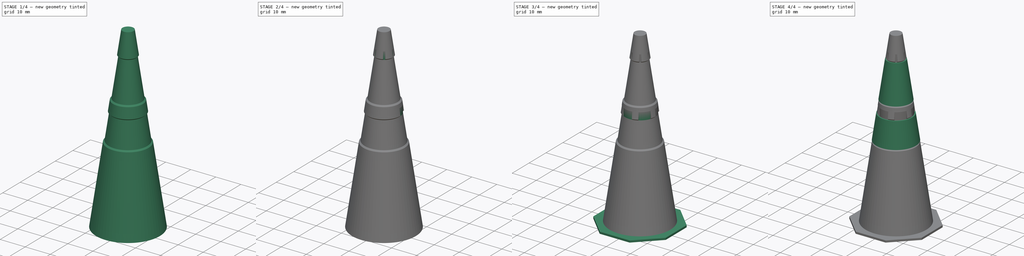
[diagram: build sequence overview — one tinted view per stage of 4, left to right]
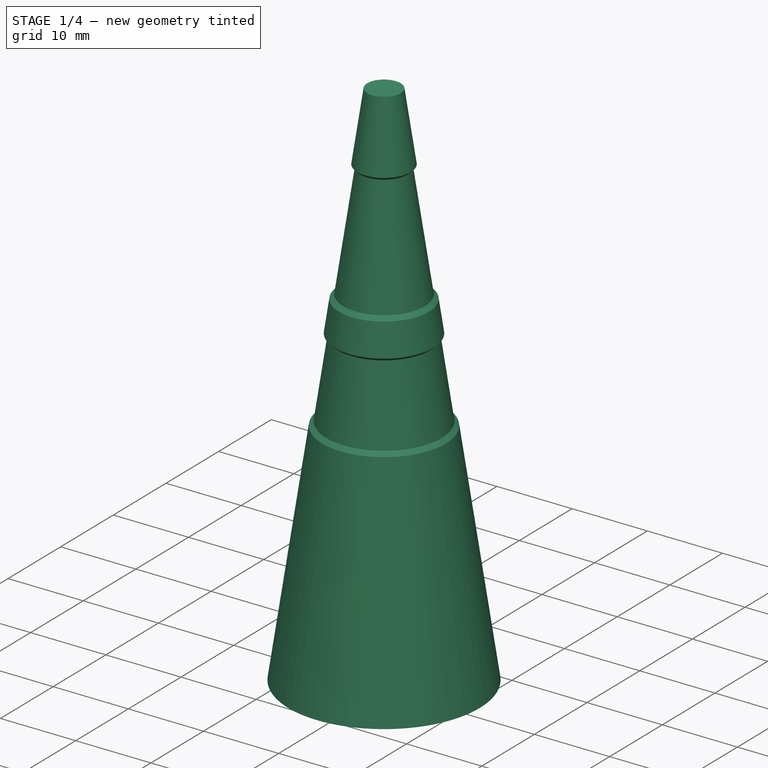
[diagram: stage 1 of 4 — iso view after this stage's code; geometry added in this stage tinted green]
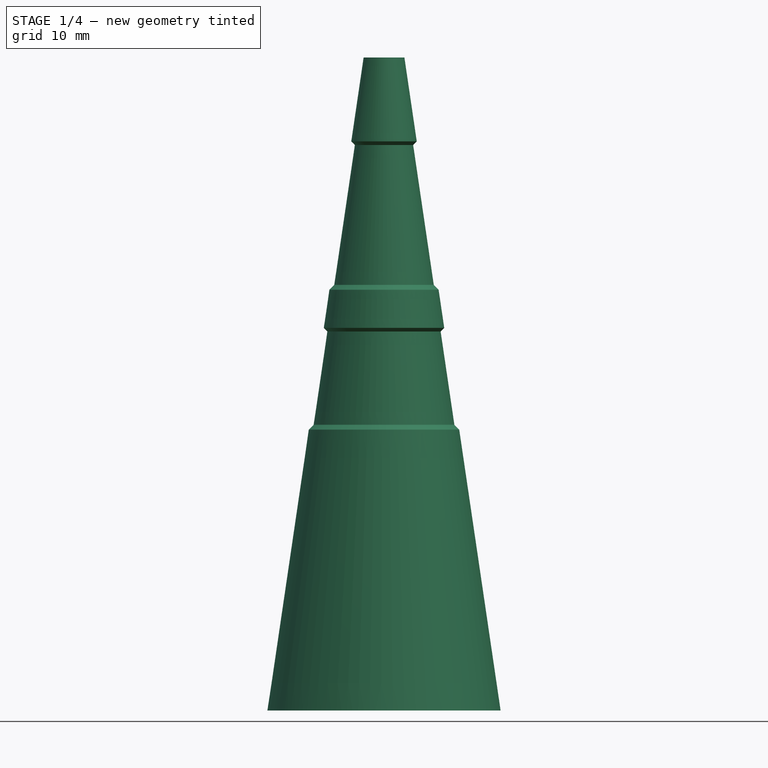
[diagram: stage 1 of 4 — front view after this stage's code; geometry added in this stage tinted green]
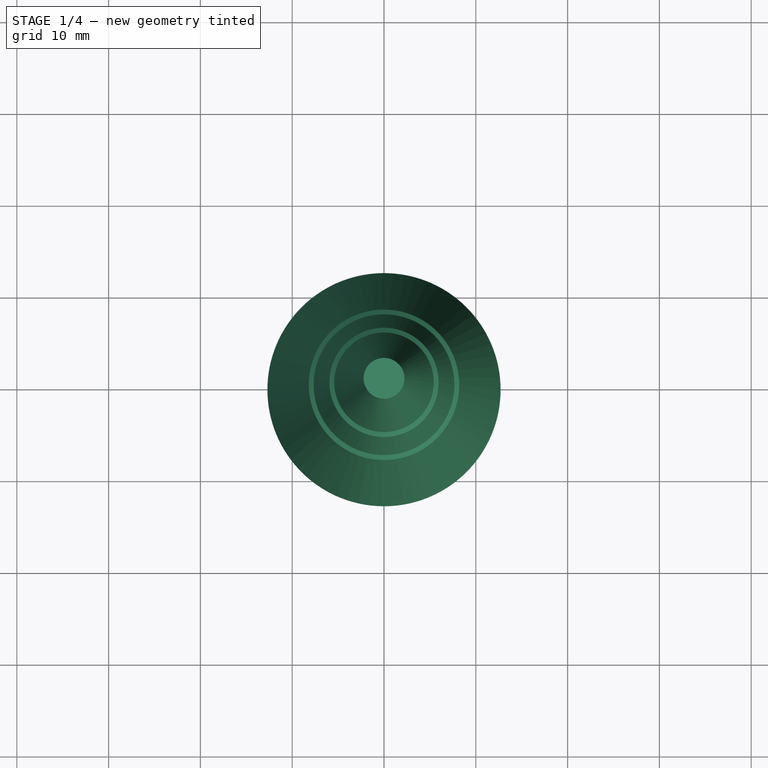
[diagram: stage 1 of 4 — top view after this stage's code; geometry added in this stage tinted green]
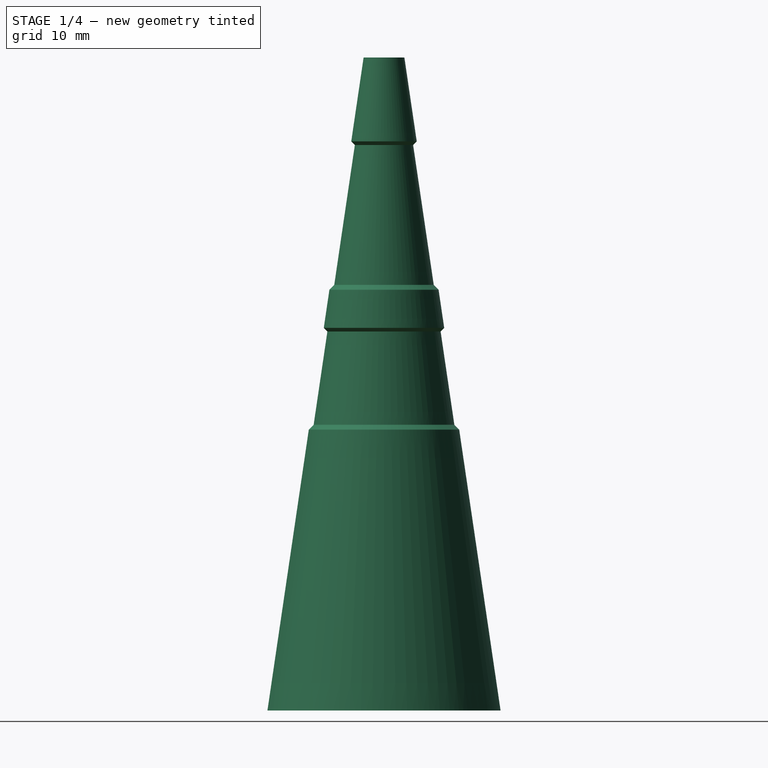
[diagram: stage 1 of 4 — right view after this stage's code; geometry added in this stage tinted green]
FCSTD DOCUMENT  (FreeCAD 1.0R39109 (Git))
Label: tiny-traffic-cone
License: All rights reserved
LicenseURL: https://en.wikipedia.org/wiki/All_rights_reserved
objects: Sketcher::SketchObject×10, PartDesign::Groove×5, PartDesign::Revolution×3, PartDesign::Body×3, Spreadsheet::Sheet×2, PartDesign::ShapeBinder×2, PartDesign::PolarPattern×2, PartDesign::Pad×1
note: 56 computed .brp shape members not serialized (recipe doc carries the construction recipe); baked Part::Feature solids carry a one-line shape summary decoded from their .brp

FEATURE [Sketcher::SketchObject] Sketch  label="Cone Sketch"
  ArcFitTolerance = 1e-06
  AttachmentSupport = -> [XZ_Plane]
  FullyConstrained = true
  MakeInternals = false
  MapMode = 5
  Placement = pos=(0,0,0) rot=(1,0,0;1.5708rad)
  expr: Constraints[4] = <<parameters>>.cone_bottom_d / 2
  expr: Constraints[5] = <<parameters>>.cone_top_d / 2
  expr: Constraints[8] = <<parameters>>.cone_height
  sketch-geometry (4):
    g0: LineSegment StartX=12.7 StartY=1.2e-15 StartZ=0 EndX=0 EndY=0 EndZ=0
    g1: LineSegment StartX=0 StartY=71.12 StartZ=0 EndX=2.2225 EndY=71.12 EndZ=0
    g2: LineSegment StartX=0 StartY=71.12 StartZ=0 EndX=0 EndY=0 EndZ=0
    g3: LineSegment StartX=2.2225 StartY=71.12 StartZ=0 EndX=12.7 EndY=1.2e-15 EndZ=0
  constraints (11):
    c: PointOnObject(g0,g-1)
    c: Coincident(g0,g-1)
    c: PointOnObject(g1,g-2)
    c: Horizontal(g1)
    c: DistanceX(g0,g0) = 12.7
    c: DistanceX(g1,g1) = 2.2225
    c: Coincident(g2,g1)
    c: Coincident(g2,g0)
    c: DistanceY(g2,g2) = 71.12
    c: Coincident(g3,g1)
    c: Coincident(g0,g3)
FEATURE [Spreadsheet::Sheet] Spreadsheet  label="parameters"
  cells = A1='fit values; B1='in mm; A2='cone/band fit; B2(fit)=0.1; A4='printing; B4='in mm / deg; D4='ref; A5='wall thickness; B5(wall)=0.45; A7='max print angle; B7(max_print_angle)=45; A8='top band tab coutout angle; B8(top_band_cutout_angle)=12; A9='bottom band tab cutout angle; B9(bottom_band_cutout_angle)=40; A10='tab cutout count; B10(cutout_tab_count)=6; A11='cone base height; B11(cone_base_height)=0.8; A12='cone base width; B12(cone_base_width)=30; A13='base corner fillet; B13(base_corner_fillet)=7; A15='traffic cone; C15='ref; D15='https://www.oregon.gov/odot/Engineering/Docs_TrafficEng/OTTCH-v2011.pdf; E15='https://www.cabletiesandmore.com/uploads/TC-28-6in-4in-Collar.pdf; F15='https://www.cabletiesandmore.com/jbc-safety-white-traffic-cones; B16='in inches; C16='in mm (1/10 scale); A17='cone height; B17=28; C17(cone_height)==B17 * 25.4 / 10; A18='cone bottom diam; B18=10; C18(cone_bottom_d)==B18 * 25.4 / 10; A19='cone top diam; B19=1.75; C19(cone_top_d)==B19 * 25.4 / 10; A20='top band dist from top; B20=3.75; C20(top_band_v_dist)==B20 * 25.4 / 10; A21='top band height; B21=6; C21(top_band_height)==B21 * 25.4 / 10; A22='bottom band dist from top band; B22=2; C22(bottom_band_v_dist)==B22 * 25.4 / 10; A23='bottom band height; B23=4; C23(bottom_band_height)==B23 * 25.4 / 10
FEATURE [Sketcher::SketchObject] Sketch004
  ArcFitTolerance = 1e-06
  AttachmentSupport = -> [XZ_Plane]
  ExternalGeometry = -> [Sketch]
  FullyConstrained = true
  MakeInternals = false
  MapMode = 5
  Placement = pos=(0,0,0) rot=(1,0,0;1.5708rad)
  expr: Constraints[11] = <<parameters>>.wall
  expr: Constraints[4] = 90 + <<parameters>>.max_print_angle
  expr: Constraints[5] = <<parameters>>.max_print_angle
  expr: Constraints[7] = <<parameters>>.top_band_height
  sketch-geometry (5):
    g0: LineSegment StartX=5.94866 StartY=45.8273 StartZ=0 EndX=5.42092 EndY=46.355 EndZ=0
    g1: LineSegment StartX=5.42092 StartY=46.355 StartZ=0 EndX=3.17574 EndY=61.595 EndZ=0
    g2: LineSegment StartX=3.17574 StartY=61.595 StartZ=0 EndX=3.56795 EndY=61.9872 EndZ=0
    g3: LineSegment StartX=3.56795 StartY=61.9872 StartZ=0 EndX=5.94866 EndY=45.8273 EndZ=0
    g4: LineSegment [constr] StartX=5.42092 StartY=46.355 StartZ=0 EndX=5.87092 EndY=46.355 EndZ=0
  constraints (15):
    c: Coincident(g1,g0)
    c: Coincident(g2,g1)
    c: Coincident(g3,g2)
    c: Coincident(g3,g0)
    c: Angle(g0) = 2.35619
    c: Angle(g2) = 0.785398
    c: Parallel(g3,g1)
    c: DistanceY(g1,g1) = 15.24
    c: Coincident(g4,g0)
    c: PointOnObject(g4,g3)
    c: Horizontal(g4)
    c: DistanceX(g4,g4) = 0.45
    c: DistanceY(g1,g-3) = 9.525
    c: Parallel(g1,g-4)
    c: PointOnObject(g2,g-4)
FEATURE [PartDesign::ShapeBinder] ShapeBinder
  Placement = pos=(0,0,0) rot=(1,0,0;1.5708rad)
  Support = -> [Sketch004]
  TraceSupport = false
FEATURE [PartDesign::Revolution] Revolution003  label="Basic Cone"
  Angle = 360
  Angle2 = 60
  Axis = (0,2e-16,1)
  Base = (0,0,0)
  Placement = pos=(0,0,0) rot=(1,0,0;1.5708rad)
  Profile = -> Sketch
  ReferenceAxis = -> Sketch [V_Axis]
  Refine = true
  Reversed = true
  Suppressed = false
  Type = 0
FEATURE [PartDesign::Body] Body002  label="BottomBand"
  AllowCompound = false
  Group = -> [ShapeBinder001,Sketch002,Revolution002]
  Origin = -> Origin002
  Tip = -> Revolution002
FEATURE [PartDesign::Groove] Groove  label="Top Band Groove"
  Angle = 360
  Angle2 = 60
  Axis = (0,2e-16,1)
  Base = (0,0,0)
  BaseFeature = -> Revolution003
  Placement = pos=(0,0,0) rot=(1,0,0;1.5708rad)
  Profile = -> Sketch004
  ReferenceAxis = -> Sketch004 [V_Axis]
  Refine = true
  Suppressed = false
  Type = 0
FEATURE [PartDesign::Groove] Groove001  label="Bottom Band Groove"
  Angle = 360
  Angle2 = 60
  Axis = (0,2e-16,1)
  Base = (0,0,0)
  BaseFeature = -> Groove
  Placement = pos=(0,0,0) rot=(1,0,0;1.5708rad)
  Profile = -> Sketch007
  ReferenceAxis = -> Sketch007 [V_Axis]
  Refine = true
  Suppressed = false
  Type = 0
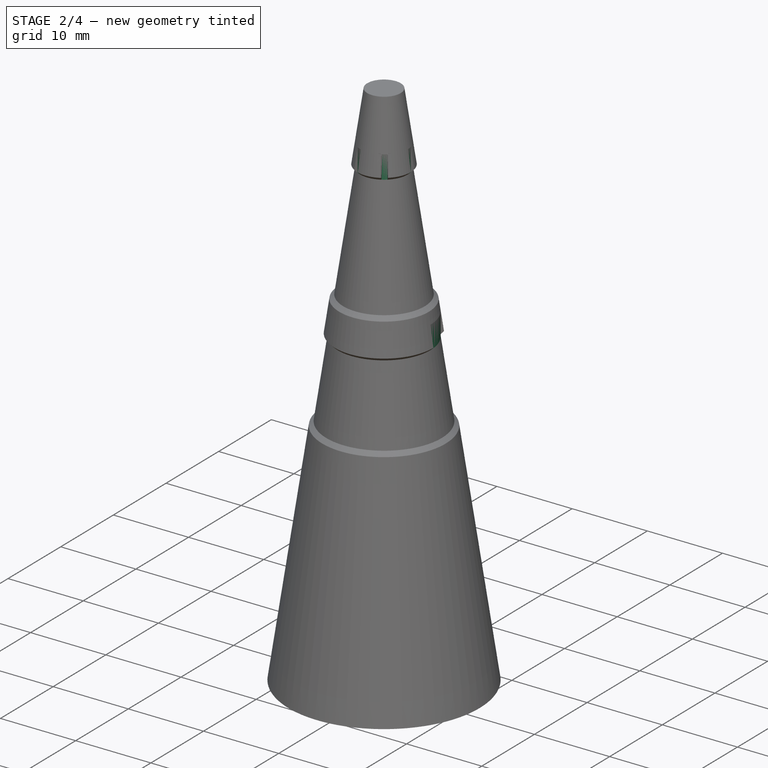
[diagram: stage 2 of 4 — iso view after this stage's code; geometry added in this stage tinted green]
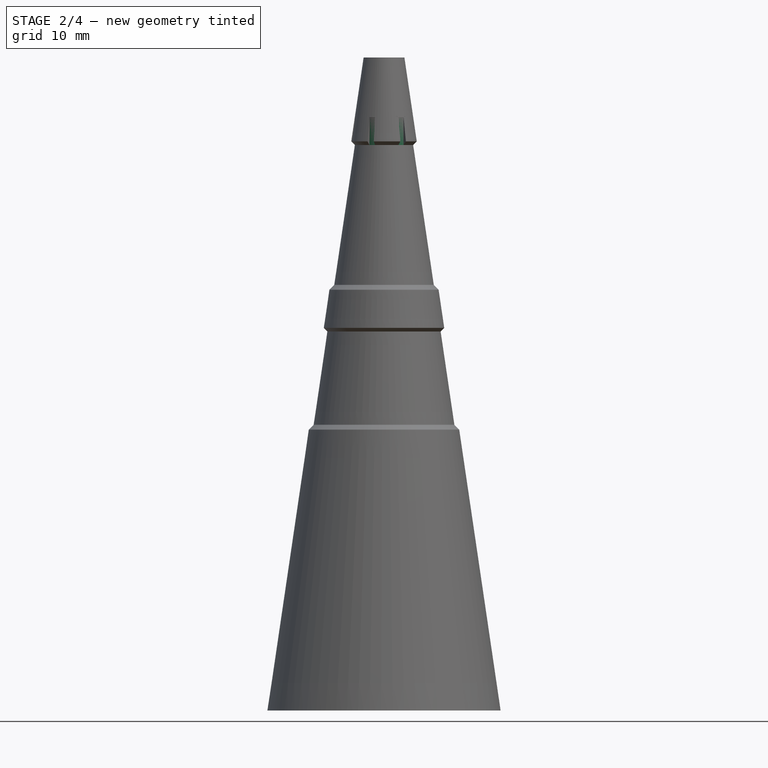
[diagram: stage 2 of 4 — front view after this stage's code; geometry added in this stage tinted green]
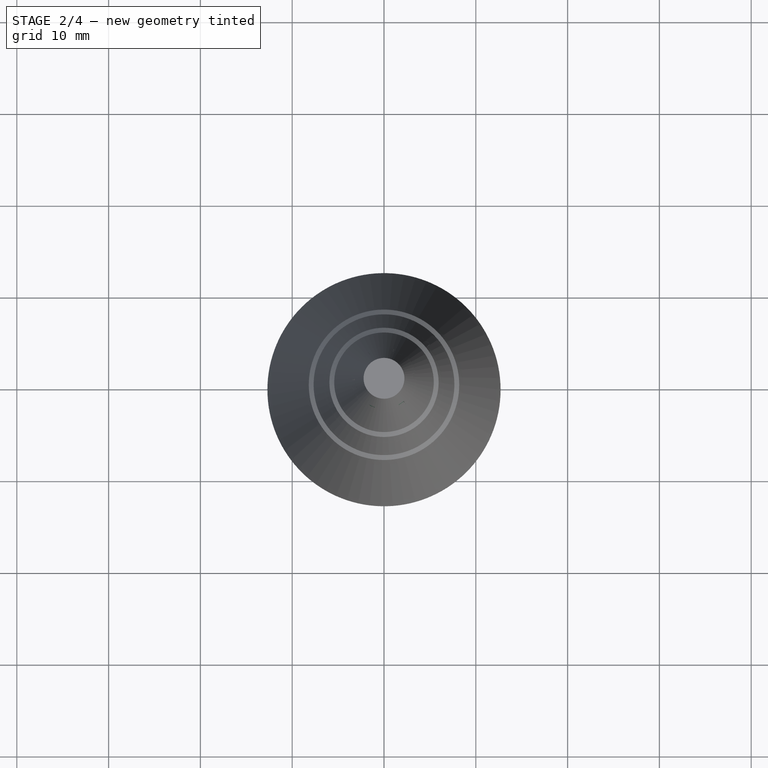
[diagram: stage 2 of 4 — top view after this stage's code; geometry added in this stage tinted green]
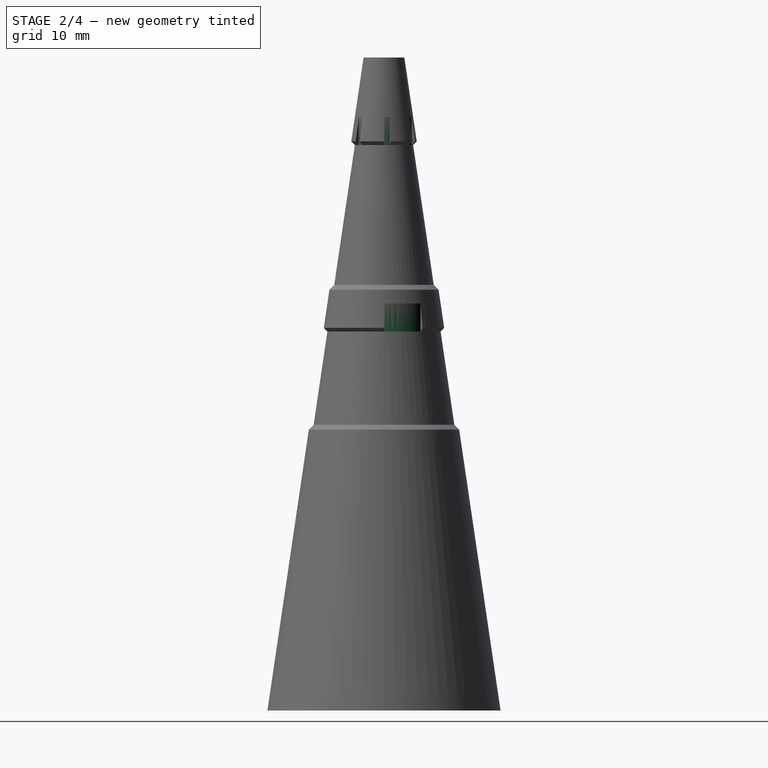
[diagram: stage 2 of 4 — right view after this stage's code; geometry added in this stage tinted green]
FEATURE [Sketcher::SketchObject] Sketch008
  ArcFitTolerance = 1e-06
  AttachmentSupport = -> [XZ_Plane]
  ExternalGeometry = -> [Sketch,Sketch004]
  FullyConstrained = true
  MakeInternals = false
  MapMode = 5
  Placement = pos=(0,0,0) rot=(1,0,0;1.5708rad)
  sketch-geometry (3):
    g0: LineSegment StartX=3.17574 StartY=61.595 StartZ=0 EndX=3.56795 EndY=61.9872 EndZ=0
    g1: LineSegment StartX=3.17574 StartY=61.595 StartZ=0 EndX=3.17574 EndY=64.6495 EndZ=0
    g2: LineSegment StartX=3.17574 StartY=64.6495 StartZ=0 EndX=3.56795 EndY=61.9872 EndZ=0
  constraints (7):
    c: Coincident(g0,g-4)
    c: Coincident(g0,g-4)
    c: Coincident(g1,g0)
    c: PointOnObject(g1,g-3)
    c: Vertical(g1)
    c: Coincident(g2,g1)
    c: Coincident(g2,g0)
FEATURE [PartDesign::Groove] Groove002
  Angle = 12
  Angle2 = 60
  Axis = (0,2e-16,1)
  Base = (0,0,0)
  BaseFeature = -> Groove001
  Placement = pos=(0,0,0) rot=(1,0,0;1.5708rad)
  Profile = -> Sketch008
  ReferenceAxis = -> Sketch008 [V_Axis]
  Refine = true
  Suppressed = false
  Type = 0
  expr: Angle = <<parameters>>.top_band_cutout_angle
FEATURE [PartDesign::PolarPattern] PolarPattern  label="Top Band Tab Cut"
  Angle = 360
  Axis = -> Sketch008 [V_Axis]
  BaseFeature = -> Groove002
  Mode = 0
  Occurrences = 6
  Offset = 124
  Originals = -> [Groove002]
  Placement = pos=(0,0,0) rot=(1,0,0;1.5708rad)
  Refine = true
  Suppressed = false
  TransformMode = 0
  expr: Occurrences = <<parameters>>.cutout_tab_count
FEATURE [Sketcher::SketchObject] Sketch009
  ArcFitTolerance = 1e-06
  AttachmentSupport = -> [XZ_Plane]
  ExternalGeometry = -> [Sketch,Sketch007]
  FullyConstrained = true
  MakeInternals = false
  MapMode = 5
  Placement = pos=(0,0,0) rot=(1,0,0;1.5708rad)
  sketch-geometry (3):
    g0: LineSegment StartX=6.16931 StartY=41.275 StartZ=0 EndX=6.56153 EndY=41.6672 EndZ=0
    g1: LineSegment StartX=6.16931 StartY=41.275 StartZ=0 EndX=6.16931 EndY=44.3295 EndZ=0
    g2: LineSegment StartX=6.16931 StartY=44.3295 StartZ=0 EndX=6.56153 EndY=41.6672 EndZ=0
  constraints (7):
    c: Coincident(g0,g-4)
    c: Coincident(g0,g-4)
    c: Coincident(g1,g0)
    c: PointOnObject(g1,g-3)
    c: Vertical(g1)
    c: Coincident(g2,g1)
    c: Coincident(g2,g0)
FEATURE [PartDesign::Groove] Groove003
  Angle = 40
  Angle2 = 60
  Axis = (0,2e-16,1)
  Base = (0,0,0)
  BaseFeature = -> PolarPattern
  Placement = pos=(0,0,0) rot=(1,0,0;1.5708rad)
  Profile = -> Sketch009
  ReferenceAxis = -> Sketch009 [V_Axis]
  Refine = true
  Suppressed = false
  Type = 0
  expr: Angle = <<parameters>>.bottom_band_cutout_angle
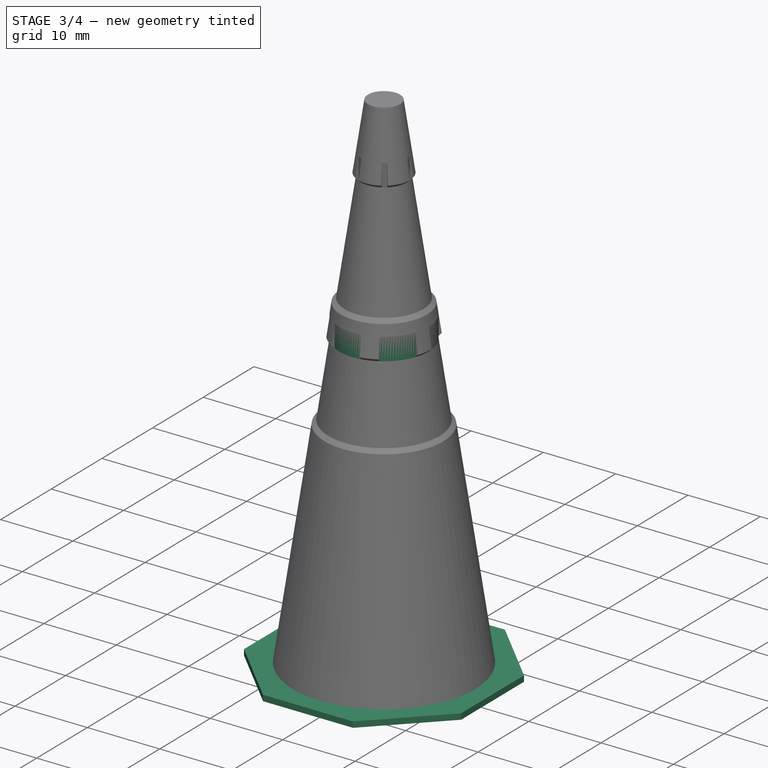
[diagram: stage 3 of 4 — iso view after this stage's code; geometry added in this stage tinted green]
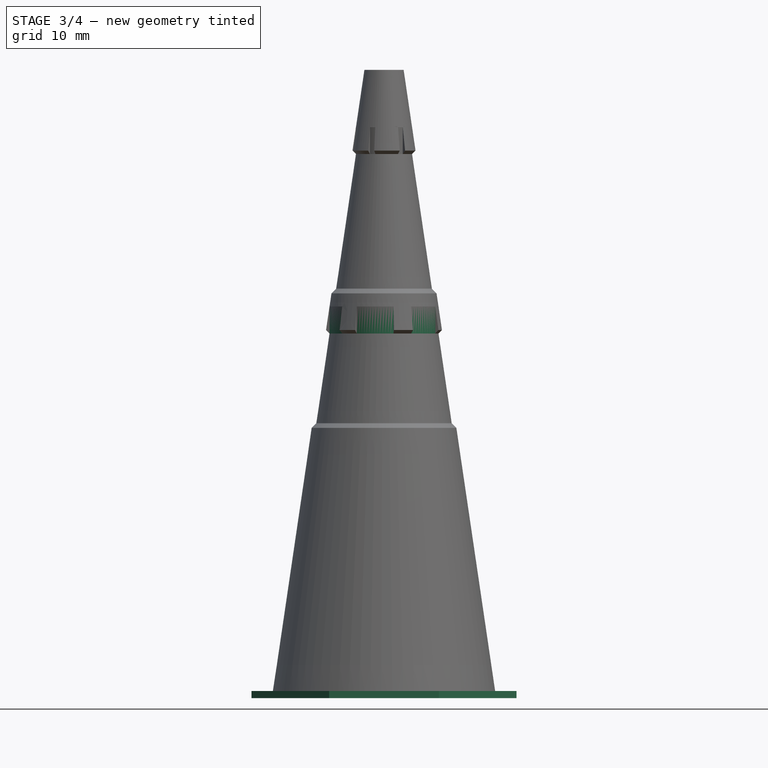
[diagram: stage 3 of 4 — front view after this stage's code; geometry added in this stage tinted green]
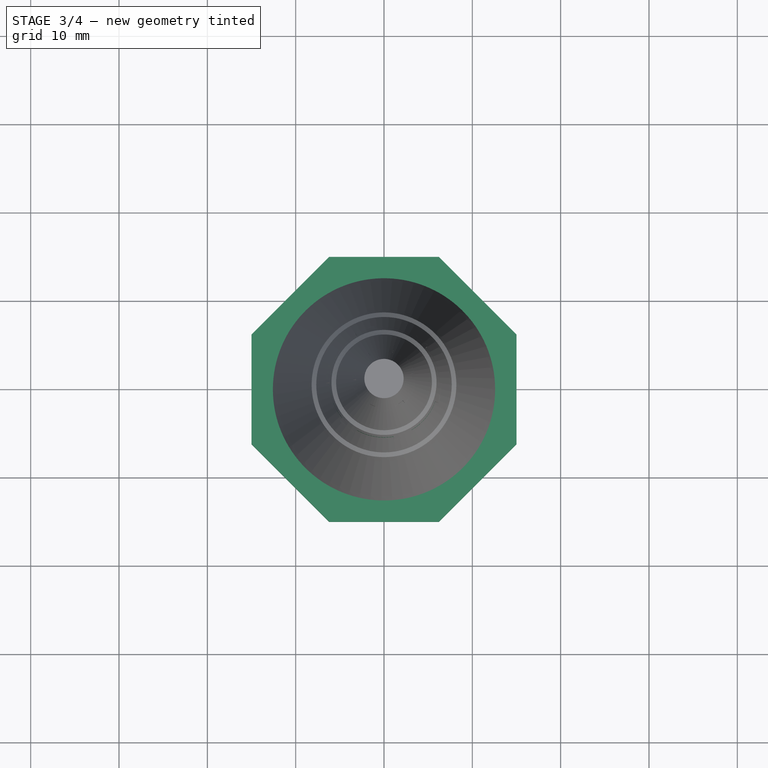
[diagram: stage 3 of 4 — top view after this stage's code; geometry added in this stage tinted green]
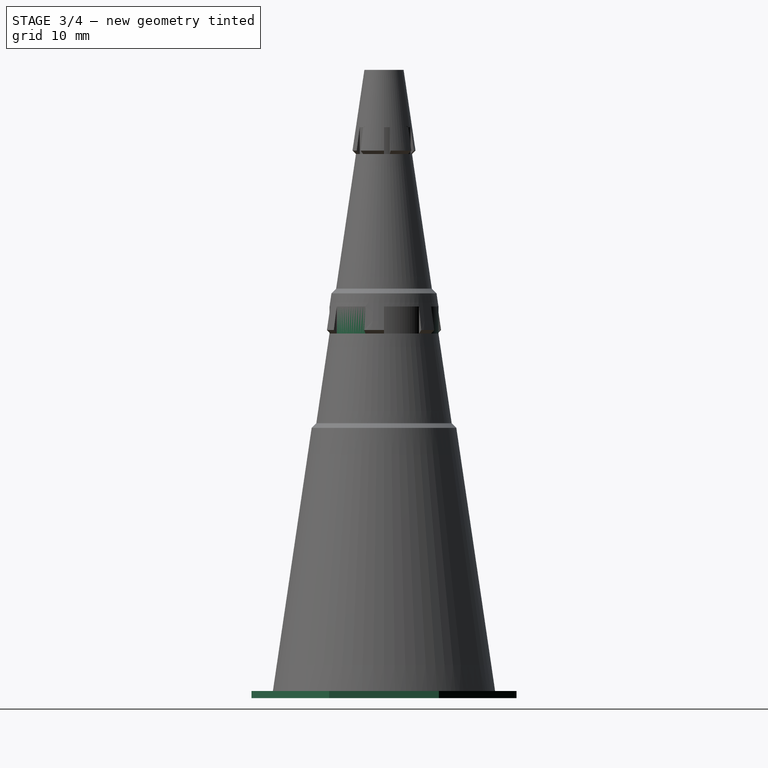
[diagram: stage 3 of 4 — right view after this stage's code; geometry added in this stage tinted green]
FEATURE [PartDesign::PolarPattern] PolarPattern001  label="Bottom Band Tab Cut"
  Angle = 360
  Axis = -> Sketch009 [V_Axis]
  BaseFeature = -> Groove003
  Mode = 0
  Occurrences = 6
  Offset = 120
  Originals = -> [Groove003]
  Placement = pos=(0,0,0) rot=(1,0,0;1.5708rad)
  Refine = true
  Suppressed = false
  TransformMode = 0
  expr: Occurrences = <<parameters>>.cutout_tab_count
FEATURE [PartDesign::Body] Body001  label="TopBand"
  AllowCompound = false
  Group = -> [ShapeBinder,Sketch010,Revolution]
  Origin = -> Origin001
  Tip = -> Revolution
FEATURE [Sketcher::SketchObject] Sketch011  label="ConeBaseSketch"
  ArcFitTolerance = 1e-06
  AttachmentSupport = -> [XY_Plane]
  FullyConstrained = true
  MakeInternals = false
  MapMode = 5
  expr: Constraints[26] = <<parameters>>.cone_base_width
  sketch-geometry (12):
    g0: LineSegment StartX=-6.2132 StartY=15 StartZ=0 EndX=6.2132 EndY=15 EndZ=0
    g1: LineSegment StartX=6.2132 StartY=15 StartZ=0 EndX=15 EndY=6.2132 EndZ=0
    g2: LineSegment StartX=15 StartY=6.2132 StartZ=0 EndX=15 EndY=-6.2132 EndZ=0
    g3: LineSegment StartX=15 StartY=-6.2132 StartZ=0 EndX=6.2132 EndY=-15 EndZ=0
    g4: LineSegment StartX=6.2132 StartY=-15 StartZ=0 EndX=-6.2132 EndY=-15 EndZ=0
    g5: LineSegment StartX=-6.2132 StartY=-15 StartZ=0 EndX=-15 EndY=-6.2132 EndZ=0
    g6: LineSegment StartX=-15 StartY=-6.2132 StartZ=0 EndX=-15 EndY=6.2132 EndZ=0
    g7: LineSegment StartX=-15 StartY=6.2132 StartZ=0 EndX=-6.2132 EndY=15 EndZ=0
    g8: LineSegment [constr] StartX=-6.2132 StartY=15 StartZ=0 EndX=-6.2132 EndY=-15 EndZ=0
    g9: LineSegment [constr] StartX=6.2132 StartY=15 StartZ=0 EndX=6.2132 EndY=-15 EndZ=0
    g10: LineSegment [constr] StartX=-15 StartY=6.2132 StartZ=0 EndX=15 EndY=6.2132 EndZ=0
    g11: LineSegment [constr] StartX=-15 StartY=-6.2132 StartZ=0 EndX=15 EndY=-6.2132 EndZ=0
  constraints (30):
    c: Coincident(g1,g0)
    c: Coincident(g2,g1)
    c: Coincident(g3,g2)
    c: Coincident(g4,g3)
    c: Horizontal(g4)
    c: Coincident(g5,g4)
    c: Coincident(g6,g5)
    c: Vertical(g6)
    c: Coincident(g7,g6)
    c: Coincident(g7,g0)
    c: Coincident(g8,g0)
    c: Coincident(g8,g4)
    c: Vertical(g8)
    c: Coincident(g9,g0)
    c: Coincident(g9,g3)
    c: Coincident(g10,g6)
    c: Coincident(g10,g1)
    c: Coincident(g11,g5)
    c: Coincident(g11,g2)
    c: Horizontal(g10)
    c: Horizontal(g11)
    c: Vertical(g9)
    c: Symmetric(g0,g0,g-2)
    c: Symmetric(g1,g2,g-1)
    c: Parallel(g1,g5)
    c: Parallel(g7,g3)
    c: DistanceY(g8,g8) = 30
    c: Angle(g7) = 0.785398
    c: Equal(g7,g6)
    c: Equal(g0,g7)
FEATURE [PartDesign::Pad] Pad001  label="ConeBase"
  BaseFeature = -> PolarPattern001
  Direction = (0,0,1)
  Length = 0.8
  Length2 = 10
  Placement = pos=(0,0,0) rot=(1,0,0;1.5708rad)
  Profile = -> Sketch011
  ReferenceAxis = -> Sketch011 [N_Axis]
  Refine = true
  Suppressed = false
  Type = 0
  expr: Length = <<parameters>>.cone_base_height
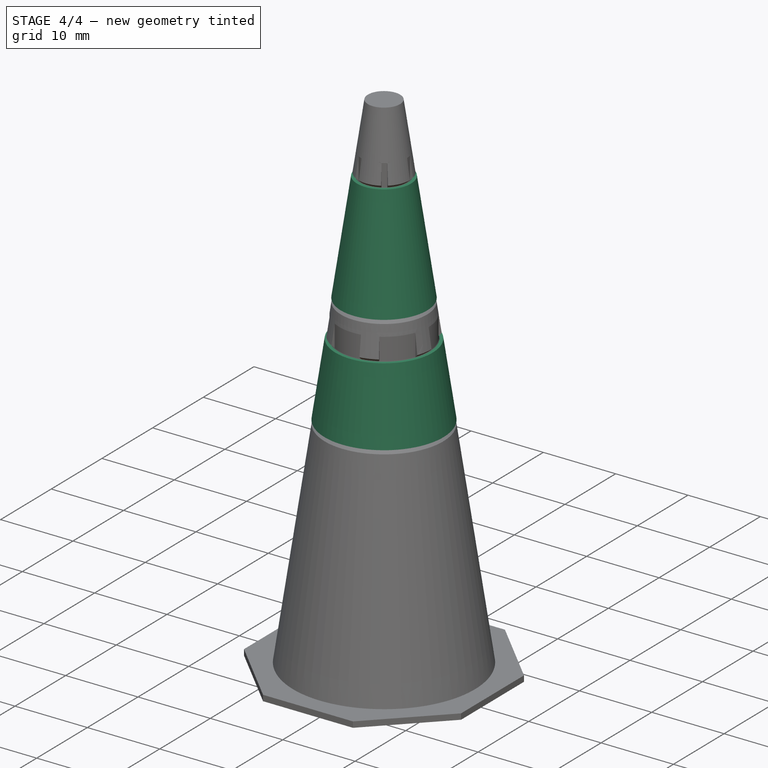
[diagram: stage 4 of 4 — iso view after this stage's code; geometry added in this stage tinted green]
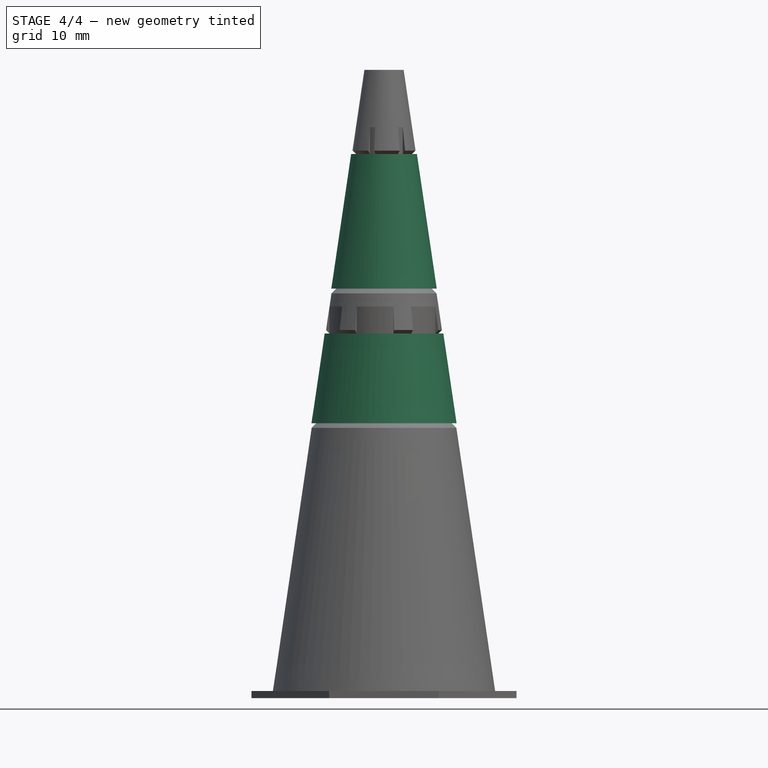
[diagram: stage 4 of 4 — front view after this stage's code; geometry added in this stage tinted green]
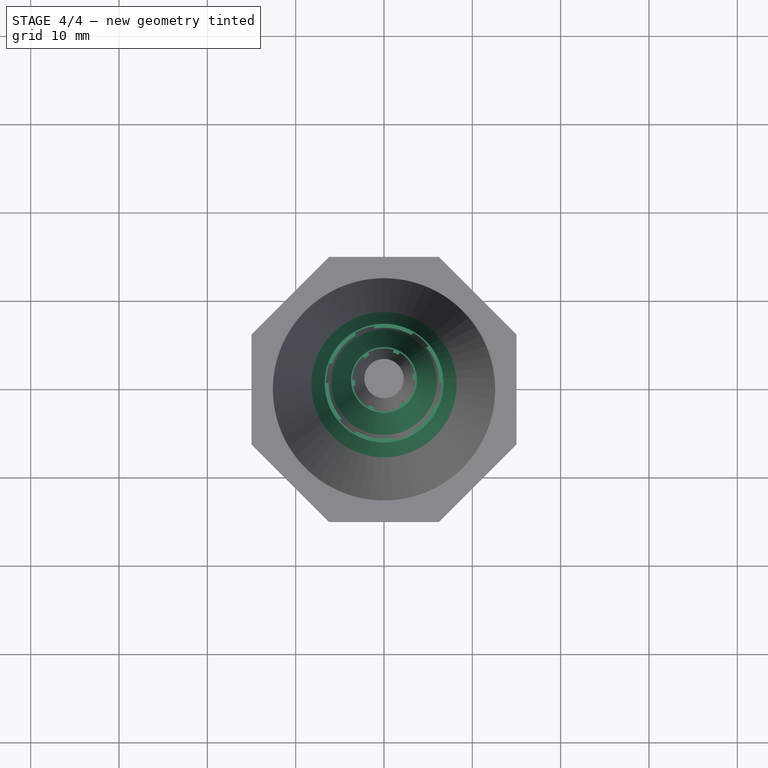
[diagram: stage 4 of 4 — top view after this stage's code; geometry added in this stage tinted green]
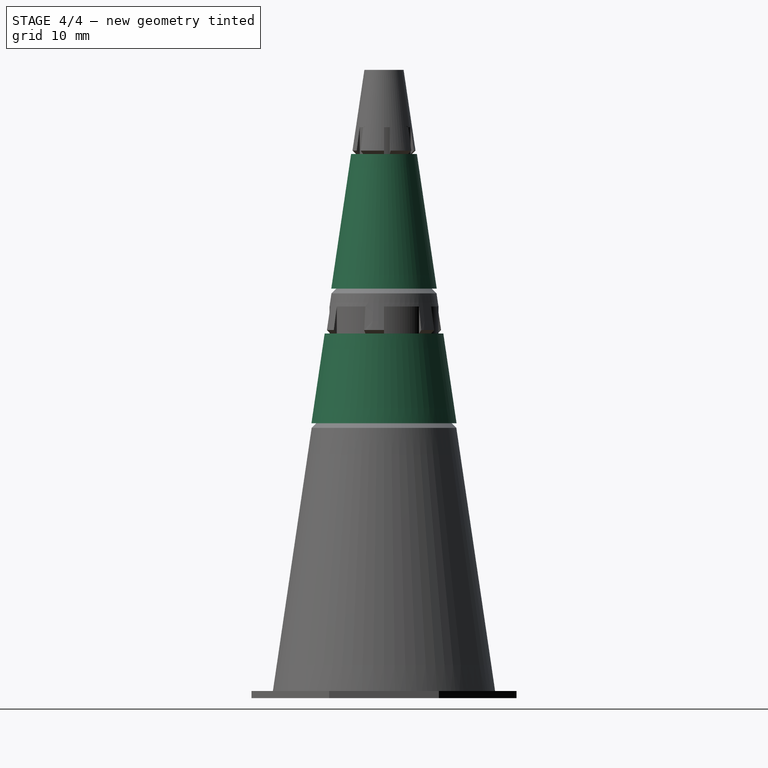
[diagram: stage 4 of 4 — right view after this stage's code; geometry added in this stage tinted green]
FEATURE [Sketcher::SketchObject] Sketch007
  ArcFitTolerance = 1e-06
  AttachmentSupport = -> [XZ_Plane]
  ExternalGeometry = -> [Sketch004,Sketch]
  FullyConstrained = true
  MakeInternals = false
  MapMode = 5
  Placement = pos=(0,0,0) rot=(1,0,0;1.5708rad)
  expr: Constraints[12] = <<parameters>>.bottom_band_v_dist
  expr: Constraints[5] = <<parameters>>.bottom_band_height
  sketch-geometry (5):
    g0: LineSegment StartX=6.56153 StartY=41.6672 StartZ=0 EndX=6.16931 EndY=41.275 EndZ=0
    g1: LineSegment StartX=6.16931 StartY=41.275 StartZ=0 EndX=7.66609 EndY=31.115 EndZ=0
    g2: LineSegment StartX=7.66609 StartY=31.115 StartZ=0 EndX=8.19384 EndY=30.5873 EndZ=0
    g3: LineSegment StartX=8.19384 StartY=30.5873 StartZ=0 EndX=6.56153 EndY=41.6672 EndZ=0
    g4: LineSegment [constr] StartX=5.42092 StartY=46.355 StartZ=0 EndX=6.16931 EndY=41.275 EndZ=0
  constraints (14):
    c: Coincident(g1,g0)
    c: Coincident(g2,g1)
    c: Coincident(g3,g2)
    c: Coincident(g3,g0)
    c: Parallel(g1,g3)
    c: DistanceY(g1,g1) = 10.16
    c: Coincident(g4,g-4)
    c: Coincident(g4,g0)
    c: PointOnObject(g0,g-6)
    c: Parallel(g-6,g4)
    c: Parallel(g0,g-5)
    c: Parallel(g-4,g2)
    c: DistanceY(g4,g4) = 5.08
    c: PointOnObject(g2,g-6)
FEATURE [PartDesign::ShapeBinder] ShapeBinder001
  Placement = pos=(0,0,0) rot=(1,0,0;1.5708rad)
  Support = -> [Sketch007]
  TraceSupport = false
FEATURE [Sketcher::SketchObject] Sketch002
  ArcFitTolerance = 1e-06
  AttachmentSupport = -> [XZ_Plane002]
  ExternalGeometry = -> [ShapeBinder001]
  FullyConstrained = true
  MakeInternals = false
  MapMode = 5
  Placement = pos=(0,0,0) rot=(1,0,0;1.5708rad)
  expr: Constraints[14] = <<parameters>>.fit
  expr: Constraints[15] = <<parameters>>.wall
  sketch-geometry (6):
    g0: LineSegment [constr] StartX=6.16931 StartY=41.275 StartZ=0 EndX=6.26931 EndY=41.275 EndZ=0
    g1: LineSegment [constr] StartX=7.66609 StartY=31.115 StartZ=0 EndX=7.76609 EndY=31.115 EndZ=0
    g2: LineSegment StartX=6.26931 StartY=41.275 StartZ=0 EndX=6.71931 EndY=41.275 EndZ=0
    g3: LineSegment StartX=6.26931 StartY=41.275 StartZ=0 EndX=7.76609 EndY=31.115 EndZ=0
    g4: LineSegment StartX=7.76609 StartY=31.115 StartZ=0 EndX=8.21609 EndY=31.115 EndZ=0
    g5: LineSegment StartX=8.21609 StartY=31.115 StartZ=0 EndX=6.71931 EndY=41.275 EndZ=0
  constraints (16):
    c: Coincident(g0,g-3)
    c: Horizontal(g0)
    c: Coincident(g1,g-3)
    c: Horizontal(g1)
    c: Coincident(g2,g0)
    c: Horizontal(g2)
    c: Coincident(g3,g0)
    c: Coincident(g3,g1)
    c: Coincident(g4,g1)
    c: Horizontal(g4)
    c: Coincident(g5,g4)
    c: Coincident(g5,g2)
    c: Parallel(g3,g-3)
    c: Parallel(g5,g3)
    c: DistanceX(g0,g0) = 0.1
    c: DistanceX(g2,g2) = 0.45
FEATURE [PartDesign::Revolution] Revolution002
  Angle = 360
  Angle2 = 60
  Axis = (0,2e-16,1)
  Base = (0,0,0)
  Placement = pos=(0,0,0) rot=(1,0,0;1.5708rad)
  Profile = -> Sketch002
  ReferenceAxis = -> Sketch002 [V_Axis]
  Refine = true
  Reversed = true
  Suppressed = false
  Type = 0
FEATURE [Sketcher::SketchObject] Sketch010
  ArcFitTolerance = 1e-06
  AttachmentSupport = -> [XZ_Plane001]
  ExternalGeometry = -> [ShapeBinder]
  FullyConstrained = true
  MakeInternals = false
  MapMode = 5
  Placement = pos=(0,0,0) rot=(1,0,0;1.5708rad)
  expr: Constraints[14] = <<parameters>>.fit
  expr: Constraints[15] = <<parameters>>.wall
  sketch-geometry (6):
    g0: LineSegment [constr] StartX=3.17574 StartY=61.595 StartZ=0 EndX=3.27574 EndY=61.595 EndZ=0
    g1: LineSegment [constr] StartX=5.42092 StartY=46.355 StartZ=0 EndX=5.52092 EndY=46.355 EndZ=0
    g2: LineSegment StartX=3.27574 StartY=61.595 StartZ=0 EndX=5.52092 EndY=46.355 EndZ=0
    g3: LineSegment StartX=3.27574 StartY=61.595 StartZ=0 EndX=3.72574 EndY=61.595 EndZ=0
    g4: LineSegment StartX=3.72574 StartY=61.595 StartZ=0 EndX=5.97092 EndY=46.355 EndZ=0
    g5: LineSegment StartX=5.97092 StartY=46.355 StartZ=0 EndX=5.52092 EndY=46.355 EndZ=0
  constraints (16):
    c: Coincident(g0,g-3)
    c: Horizontal(g0)
    c: Coincident(g1,g-3)
    c: Horizontal(g1)
    c: Coincident(g2,g0)
    c: Coincident(g2,g1)
    c: Coincident(g3,g0)
    c: Horizontal(g3)
    c: Coincident(g4,g3)
    c: Coincident(g5,g4)
    c: Coincident(g5,g1)
    c: Horizontal(g5)
    c: Parallel(g2,g-3)
    c: Parallel(g4,g2)
    c: DistanceX(g0,g0) = 0.1
    c: DistanceX(g3,g3) = 0.45
FEATURE [PartDesign::Revolution] Revolution
  Angle = 360
  Angle2 = 60
  Axis = (0,2e-16,1)
  Base = (0,0,0)
  Placement = pos=(0,0,0) rot=(1,0,0;1.5708rad)
  Profile = -> Sketch010
  ReferenceAxis = -> Sketch010 [V_Axis]
  Refine = true
  Reversed = true
  Suppressed = false
  Type = 0
FEATURE [Sketcher::SketchObject] Sketch012
  ArcFitTolerance = 1e-06
  AttachmentSupport = -> [XZ_Plane]
  ExternalGeometry = -> [Sketch]
  FullyConstrained = true
  MakeInternals = false
  MapMode = 5
  Placement = pos=(0,0,0) rot=(1,0,0;1.5708rad)
  expr: Constraints[11] = <<parameters>>.wall
  sketch-geometry (5):
    g0: LineSegment [constr] StartX=12.7 StartY=1.2e-15 StartZ=0 EndX=12.25 EndY=0 EndZ=0
    g1: LineSegment StartX=12.25 StartY=0 StartZ=0 EndX=11.9554 EndY=2 EndZ=0
    g2: LineSegment StartX=11.9554 StartY=2 StartZ=0 EndX=0 EndY=2 EndZ=0
    g3: LineSegment StartX=0 StartY=2 StartZ=0 EndX=0 EndY=0 EndZ=0
    g4: LineSegment StartX=0 StartY=0 StartZ=0 EndX=12.25 EndY=0 EndZ=0
  constraints (13):
    c: Coincident(g0,g-3)
    c: PointOnObject(g0,g-1)
    c: Coincident(g2,g1)
    c: Horizontal(g2)
    c: Coincident(g3,g2)
    c: Coincident(g3,g-1)
    c: Coincident(g4,g3)
    c: Coincident(g4,g1)
    c: Parallel(g-3,g1)
    c: Vertical(g3)
    c: DistanceY(g1,g1) = 2
    c: DistanceX(g0,g0) = 0.45
    c: Coincident(g0,g1)
FEATURE [Spreadsheet::Sheet] Spreadsheet001  label="status"
  cells = B1='Todo; B4='Changelog; C4='Printed (Y/N)
FEATURE [PartDesign::Groove] Groove004  label="ConeBaseInnerHole"
  Angle = 360
  Angle2 = 60
  Axis = (0,2e-16,1)
  Base = (0,0,0)
  BaseFeature = -> Pad001
  Placement = pos=(0,0,0) rot=(1,0,0;1.5708rad)
  Profile = -> Sketch012
  ReferenceAxis = -> Sketch012 [V_Axis]
  Refine = true
  Suppressed = false
  Type = 0
FEATURE [Sketcher::SketchObject] Sketch029
  ArcFitTolerance = 1e-06
  AttachmentSupport = -> [XZ_Plane]
  ExternalGeometry = -> [Sketch007,Sketch004,Sketch,Groove004]
  FullyConstrained = true
  MakeInternals = false
  MapMode = 5
  Placement = pos=(0,0,0) rot=(1,0,0;1.5708rad)
  expr: Constraints[56] = <<parameters>>.wall
  sketch-geometry (20):
    g0: LineSegment [constr] StartX=3.56795 StartY=61.9872 StartZ=0 EndX=0 EndY=61.9872 EndZ=0
    g1: LineSegment [constr] StartX=3.17574 StartY=61.595 StartZ=0 EndX=0 EndY=61.595 EndZ=0
    g2: LineSegment [constr] StartX=5.42092 StartY=46.355 StartZ=0 EndX=0 EndY=46.355 EndZ=0
    g3: LineSegment [constr] StartX=5.94866 StartY=45.8273 StartZ=0 EndX=0 EndY=45.8273 EndZ=0
    g4: LineSegment [constr] StartX=6.56153 StartY=41.6672 StartZ=0 EndX=0 EndY=41.6672 EndZ=0
    g5: LineSegment [constr] StartX=6.16931 StartY=41.275 StartZ=0 EndX=0 EndY=41.275 EndZ=0
    g6: LineSegment [constr] StartX=7.66609 StartY=31.115 StartZ=0 EndX=0 EndY=31.115 EndZ=0
    g7: LineSegment [constr] StartX=8.19384 StartY=30.5873 StartZ=0 EndX=0 EndY=30.5873 EndZ=0
    g8: LineSegment StartX=5.49866 StartY=45.8273 StartZ=0 EndX=6.11153 EndY=41.6672 EndZ=0
    g9: LineSegment StartX=5.49866 StartY=45.8273 StartZ=0 EndX=4.97092 EndY=46.355 EndZ=0
    g10: LineSegment StartX=4.97092 StartY=46.355 StartZ=0 EndX=2.72574 EndY=61.595 EndZ=0
    g11: LineSegment StartX=2.72574 StartY=61.595 StartZ=0 EndX=3.11795 EndY=61.9872 EndZ=0
    g12: LineSegment StartX=3.11795 StartY=61.9872 StartZ=0 EndX=1.7725 EndY=71.12 EndZ=0
    g13: LineSegment StartX=1.7725 StartY=71.12 StartZ=0 EndX=0 EndY=71.12 EndZ=0
    g14: LineSegment StartX=6.11153 StartY=41.6672 StartZ=0 EndX=5.71931 EndY=41.275 EndZ=0
    g15: LineSegment StartX=5.71931 StartY=41.275 StartZ=0 EndX=7.21609 EndY=31.115 EndZ=0
    g16: LineSegment StartX=7.21609 StartY=31.115 StartZ=0 EndX=7.74384 EndY=30.5873 EndZ=0
    g17: LineSegment StartX=7.74384 StartY=30.5873 StartZ=0 EndX=12.25 EndY=1e-15 EndZ=0
    g18: LineSegment StartX=12.25 StartY=1e-15 StartZ=0 EndX=0 EndY=0 EndZ=0
    g19: LineSegment StartX=0 StartY=0 StartZ=0 EndX=0 EndY=71.12 EndZ=0
  constraints (59):
    c: Coincident(g0,g-9)
    c: PointOnObject(g0,g-2)
    c: Horizontal(g0)
    c: Coincident(g1,g-9)
    c: PointOnObject(g1,g-2)
    c: Horizontal(g1)
    c: Coincident(g2,g-8)
    c: PointOnObject(g2,g-2)
    c: Horizontal(g2)
    c: Coincident(g3,g-5)
    c: PointOnObject(g3,g-2)
    c: Horizontal(g3)
    c: Coincident(g4,g-4)
    c: PointOnObject(g4,g-2)
    c: Horizontal(g4)
    c: Coincident(g5,g-4)
    c: PointOnObject(g5,g-2)
    c: Horizontal(g5)
    c: Coincident(g6,g-7)
    c: PointOnObject(g6,g-2)
    c: Horizontal(g6)
    c: Coincident(g7,g-7)
    c: PointOnObject(g7,g-2)
    c: Horizontal(g7)
    c: PointOnObject(g8,g3)
    c: PointOnObject(g8,g4)
    c: Parallel(g8,g-6)
    c: Coincident(g9,g8)
    c: PointOnObject(g9,g2)
    c: Parallel(g-5,g9)
    c: Coincident(g10,g9)
    c: PointOnObject(g10,g1)
    c: Coincident(g11,g10)
    c: PointOnObject(g11,g0)
    c: Parallel(g-9,g11)
    c: Parallel(g10,g-8)
    c: Coincident(g12,g11)
    c: PointOnObject(g12,g-10)
    c: Coincident(g13,g12)
    c: PointOnObject(g13,g-2)
    c: Horizontal(g13)
    c: Parallel(g12,g-6)
    c: Coincident(g14,g8)
    c: PointOnObject(g14,g5)
    c: Coincident(g15,g14)
    c: PointOnObject(g15,g6)
    c: Coincident(g16,g15)
    c: PointOnObject(g16,g7)
    c: Coincident(g17,g16)
    c: PointOnObject(g17,g-1)
    c: Coincident(g18,g17)
    c: Coincident(g18,g-1)
    c: Parallel(g17,g-6)
    c: Parallel(g16,g-7)
    c: Parallel(g15,g-3)
    c: Parallel(g-4,g14)
    c: DistanceX(g12,g-10) = 0.45
    c: Coincident(g19,g18)
    c: Coincident(g19,g13)
FEATURE [PartDesign::Body] Body  label="Cone"
  AllowCompound = false
  Group = -> [Sketch,Revolution003,Sketch004,Groove,Sketch007,Groove001,Sketch008,Groove002,PolarPattern,Sketch009,Groove003,PolarPattern001,Sketch011,Pad001,Sketch012,Groove004,Sketch029]
  Origin = -> Origin
  Tip = -> Groove004
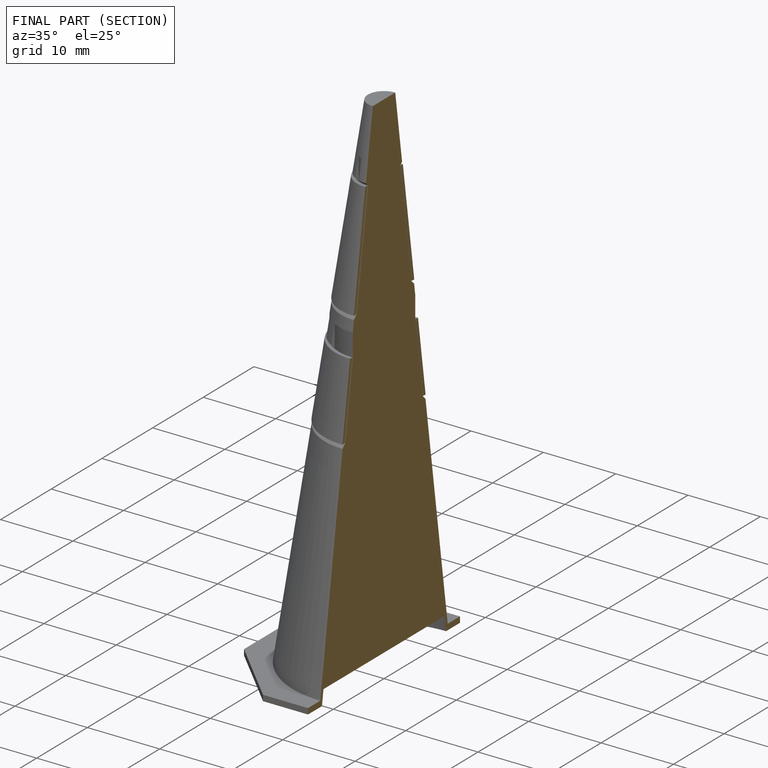
[diagram: finished part — half-section view (interior)]
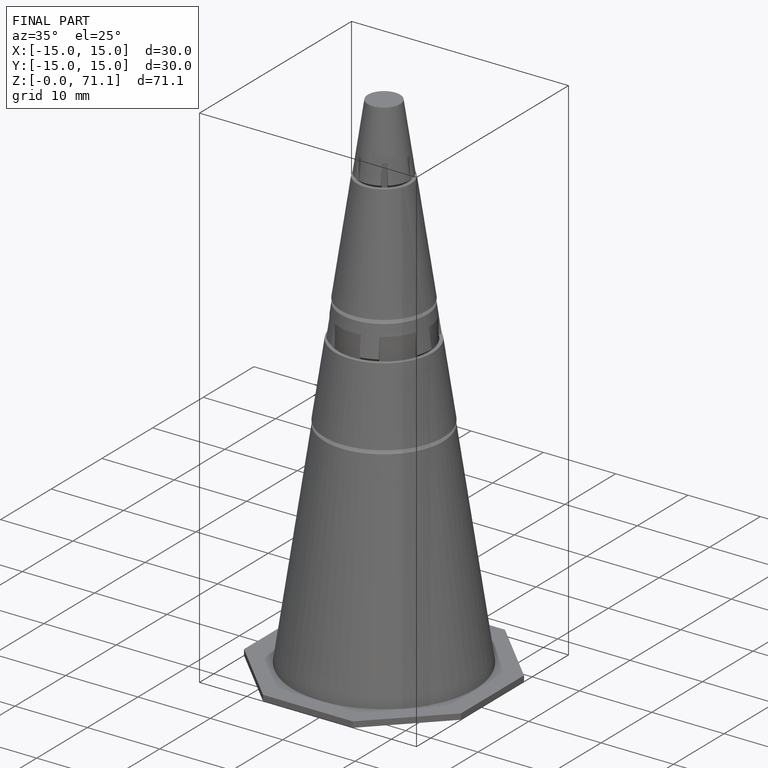
[diagram: finished part — iso view with bounding-box wireframe]
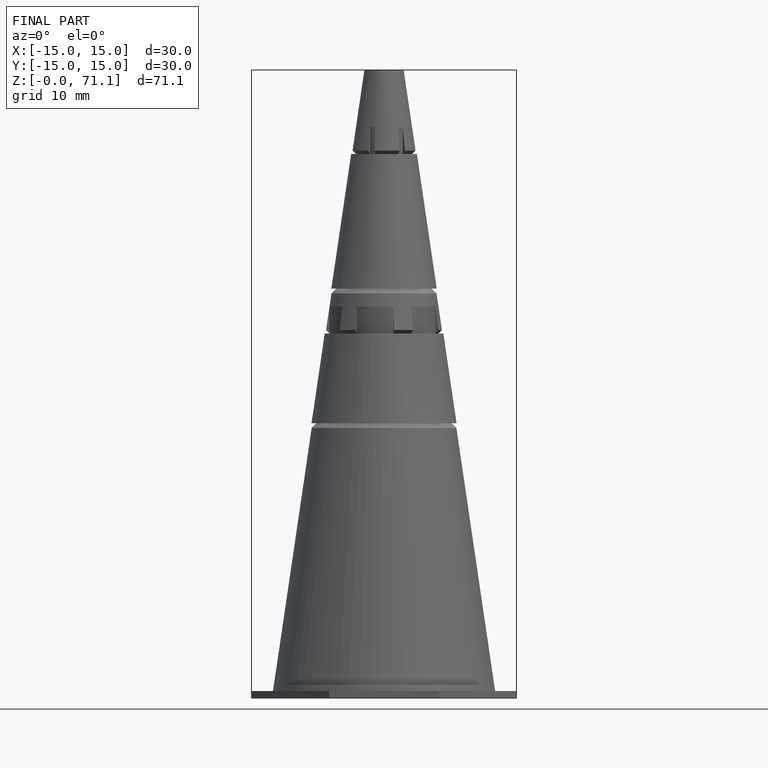
[diagram: finished part — front view with bounding-box wireframe]
